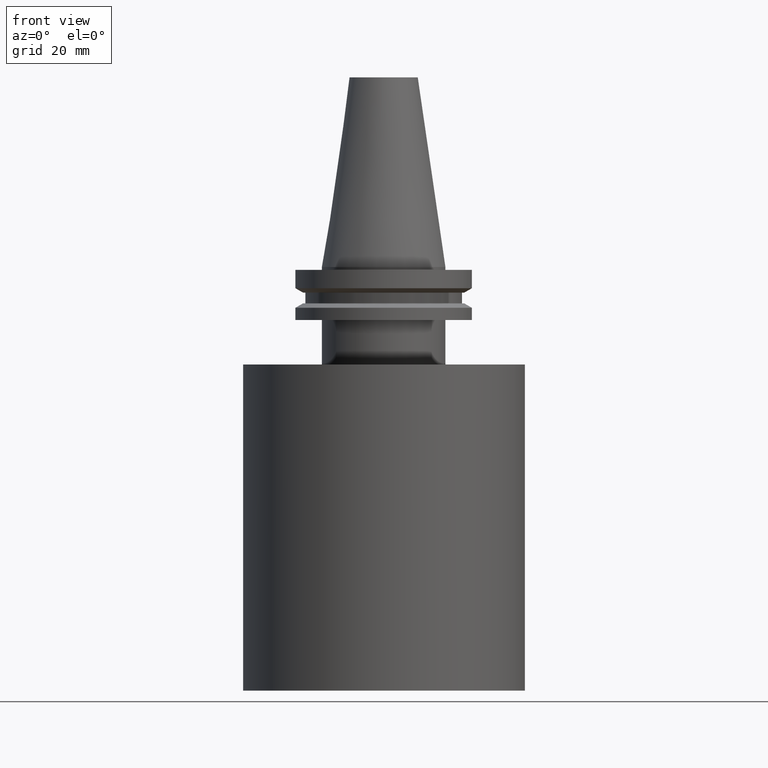
[diagram: clean part render]
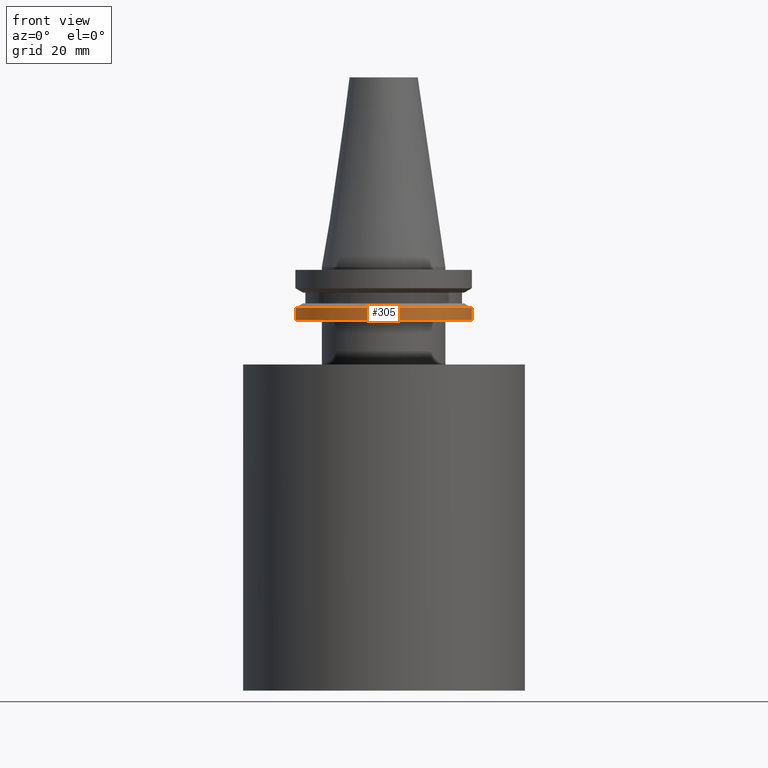
[diagram: same view with one face highlighted and labeled with its STEP entity id]
A machine part, front view. The second image highlights one B-rep face of the part: STEP entity #305.
In plain terms, the highlighted cylindrical surface (bore or boss wall) has radius 31.75 mm, axis along (-0, -0, 1).
Its self-contained STEP definition (entity closure, byte-faithful):
#13 = DIRECTION ( 'NONE',  ( -0.000000000000000000, -0.000000000000000000, 1.000000000000000000 ) ) ;
#23 = CARTESIAN_POINT ( 'NONE',  ( 0.000000000000000000, 0.000000000000000000, 68.25000000000000000 ) ) ;
#53 = CARTESIAN_POINT ( 'NONE',  ( 0.000000000000000000, 0.000000000000000000, -19.04999999999999716 ) ) ;
#83 = FACE_OUTER_BOUND ( 'NONE', #212, .T. ) ;
#89 = DIRECTION ( 'NONE',  ( -0.000000000000000000, -0.000000000000000000, 1.000000000000000000 ) ) ;
#113 = CIRCLE ( 'NONE', #216, 31.75000000000000000 ) ;
#177 = VERTEX_POINT ( 'NONE', #304 ) ;
#180 = AXIS2_PLACEMENT_3D ( 'NONE', #23, #360, #211 ) ;
#189 = EDGE_LOOP ( 'NONE', ( #226 ) ) ;
#195 = CIRCLE ( 'NONE', #319, 31.74999999999999289 ) ;
#205 = DIRECTION ( 'NONE',  ( 1.000000000000000000, 0.000000000000000000, 0.000000000000000000 ) ) ;
#211 = DIRECTION ( 'NONE',  ( 1.000000000000000000, 0.000000000000000000, 0.000000000000000000 ) ) ;
#212 = EDGE_LOOP ( 'NONE', ( #253 ) ) ;
#214 = DIRECTION ( 'NONE',  ( 1.000000000000000000, 0.000000000000000000, 0.000000000000000000 ) ) ;
#216 = AXIS2_PLACEMENT_3D ( 'NONE', #296, #13, #205 ) ;
#226 = ORIENTED_EDGE ( 'NONE', *, *, #388, .T. ) ;
#227 = EDGE_CURVE ( 'NONE', #177, #177, #113, .T. ) ;
#253 = ORIENTED_EDGE ( 'NONE', *, *, #227, .F. ) ;
#296 = CARTESIAN_POINT ( 'NONE',  ( 0.000000000000000000, 0.000000000000000000, -14.65472339340266572 ) ) ;
#304 = CARTESIAN_POINT ( 'NONE',  ( 31.75000000000000000, 0.000000000000000000, -14.65472339340266572 ) ) ;
#305 = ADVANCED_FACE ( 'NONE', ( #83, #393 ), #387, .T. ) ;
#310 = CARTESIAN_POINT ( 'NONE',  ( 31.74999999999999289, 0.000000000000000000, -19.04999999999999716 ) ) ;
#319 = AXIS2_PLACEMENT_3D ( 'NONE', #53, #89, #214 ) ;
#360 = DIRECTION ( 'NONE',  ( -0.000000000000000000, -0.000000000000000000, 1.000000000000000000 ) ) ;
#375 = VERTEX_POINT ( 'NONE', #310 ) ;
#387 = CYLINDRICAL_SURFACE ( 'NONE', #180, 31.75000000000000000 ) ;
#388 = EDGE_CURVE ( 'NONE', #375, #375, #195, .T. ) ;
#393 = FACE_OUTER_BOUND ( 'NONE', #189, .T. ) ;